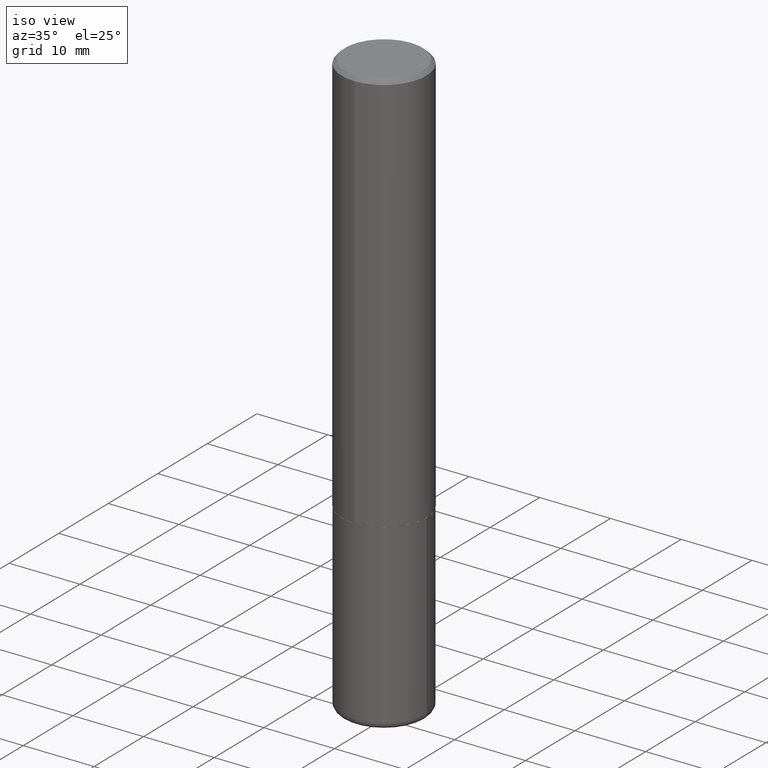
[diagram: clean part render]
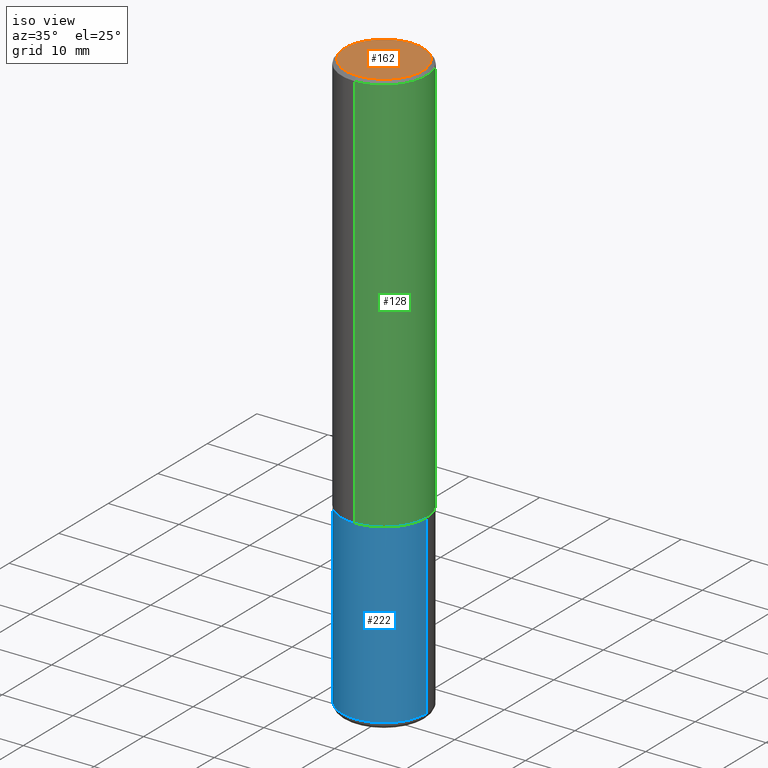
[diagram: same view with three faces highlighted in distinct colors, each labeled with its STEP entity id]
A machine part, iso view with three faces highlighted in distinct colors.
Their STEP definitions:

[orange] entity #162 — the highlighted planar face has unit normal (0, -0, -1).
#8 = AXIS2_PLACEMENT_3D ( 'NONE', #179, #269, #401 ) ;
#37 = ORIENTED_EDGE ( 'NONE', *, *, #180, .T. ) ;
#77 = CARTESIAN_POINT ( 'NONE',  ( 1.579546157692633621E-15, 0.2161999999999999478, -6.694880156558795861E-16 ) ) ;
#118 = VERTEX_POINT ( 'NONE', #77 ) ;
#122 = CARTESIAN_POINT ( 'NONE',  ( -2.089361895350857775E-45, 2.983658608395124733E-31, 8.544672254365514246E-17 ) ) ;
#140 = FACE_OUTER_BOUND ( 'NONE', #323, .T. ) ;
#144 = PLANE ( 'NONE',  #328 ) ;
#162 = ADVANCED_FACE ( 'NONE', ( #140 ), #144, .F. ) ;
#179 = CARTESIAN_POINT ( 'NONE',  ( -2.089361895350857775E-45, 2.983658608395124733E-31, 8.544672254365514246E-17 ) ) ;
#180 = EDGE_CURVE ( 'NONE', #118, #202, #410, .T. ) ;
#202 = VERTEX_POINT ( 'NONE', #303 ) ;
#208 = DIRECTION ( 'NONE',  ( 6.982962677686265922E-15, 1.000000000000000000, -3.491835051801734702E-15 ) ) ;
#250 = DIRECTION ( 'NONE',  ( -2.445221809746292518E-29, 3.491835051801734308E-15, 1.000000000000000000 ) ) ;
#258 = AXIS2_PLACEMENT_3D ( 'NONE', #122, #250, #305 ) ;
#268 = CARTESIAN_POINT ( 'NONE',  ( 1.509716530915770323E-15, 0.2161999999999999478, -7.122113769277070896E-16 ) ) ;
#269 = DIRECTION ( 'NONE',  ( -2.445221809746292518E-29, 3.491835051801734308E-15, 1.000000000000000000 ) ) ;
#303 = CARTESIAN_POINT ( 'NONE',  ( -1.551844647095920142E-15, -0.2161999999999999478, 8.403814607431897971E-16 ) ) ;
#305 = DIRECTION ( 'NONE',  ( -6.982962677686265922E-15, -1.000000000000000000, 3.491835051801733913E-15 ) ) ;
#321 = ORIENTED_EDGE ( 'NONE', *, *, #324, .T. ) ;
#323 = EDGE_LOOP ( 'NONE', ( #37, #321 ) ) ;
#324 = EDGE_CURVE ( 'NONE', #202, #118, #341, .T. ) ;
#328 = AXIS2_PLACEMENT_3D ( 'NONE', #268, #335, #208 ) ;
#335 = DIRECTION ( 'NONE',  ( 2.445221809746291958E-29, -3.491835051801734702E-15, -1.000000000000000000 ) ) ;
#341 = CIRCLE ( 'NONE', #258, 0.2161999999999999478 ) ;
#401 = DIRECTION ( 'NONE',  ( -6.982962677686265922E-15, -1.000000000000000000, 3.491835051801733913E-15 ) ) ;
#410 = CIRCLE ( 'NONE', #8, 0.2161999999999999478 ) ;

[blue] entity #222 — the highlighted cylindrical surface (partial cylindrical patch) has radius 5.9995 mm, axis along (-0, 0, 1).
#6 = CARTESIAN_POINT ( 'NONE',  ( 5.487876547960065873E-29, -7.835233272497903917E-15, -2.244100000000000428 ) ) ;
#14 = AXIS2_PLACEMENT_3D ( 'NONE', #16, #379, #133 ) ;
#16 = CARTESIAN_POINT ( 'NONE',  ( 7.894706947007477118E-29, -1.127154920618732880E-14, -3.228299999999999947 ) ) ;
#20 = DIRECTION ( 'NONE',  ( 1.000000000000000000, -6.982962677686266711E-15, 4.876176775795936353E-29 ) ) ;
#24 = VERTEX_POINT ( 'NONE', #380 ) ;
#32 = ORIENTED_EDGE ( 'NONE', *, *, #123, .F. ) ;
#82 = VERTEX_POINT ( 'NONE', #296 ) ;
#90 = LINE ( 'NONE', #314, #347 ) ;
#96 = VERTEX_POINT ( 'NONE', #299 ) ;
#103 = VERTEX_POINT ( 'NONE', #262 ) ;
#109 = EDGE_CURVE ( 'NONE', #103, #82, #284, .T. ) ;
#123 = EDGE_CURVE ( 'NONE', #96, #103, #396, .T. ) ;
#133 = DIRECTION ( 'NONE',  ( 1.000000000000000000, -6.982962677686265133E-15, 0.000000000000000000 ) ) ;
#135 = VECTOR ( 'NONE', #145, 39.37007874015748143 ) ;
#141 = CIRCLE ( 'NONE', #14, 0.2361999999999999933 ) ;
#145 = DIRECTION ( 'NONE',  ( -2.445468806185136877E-29, 3.491481338843145188E-15, 1.000000000000000000 ) ) ;
#195 = AXIS2_PLACEMENT_3D ( 'NONE', #210, #407, #20 ) ;
#198 = ORIENTED_EDGE ( 'NONE', *, *, #109, .F. ) ;
#210 = CARTESIAN_POINT ( 'NONE',  ( 0.000000000000000000, 0.000000000000000000, 0.000000000000000000 ) ) ;
#222 = ADVANCED_FACE ( 'NONE', ( #273 ), #344, .T. ) ;
#232 = CARTESIAN_POINT ( 'NONE',  ( -0.2361999999999999933, 1.678301941865356591E-15, -1.161852468318208757E-29 ) ) ;
#245 = DIRECTION ( 'NONE',  ( -2.445468806185136877E-29, 3.491481338843145188E-15, 1.000000000000000000 ) ) ;
#262 = CARTESIAN_POINT ( 'NONE',  ( -0.2361999999999999933, -7.875089297477259967E-15, -2.244100000000000428 ) ) ;
#273 = FACE_OUTER_BOUND ( 'NONE', #285, .T. ) ;
#278 = ORIENTED_EDGE ( 'NONE', *, *, #398, .T. ) ;
#284 = CIRCLE ( 'NONE', #400, 0.2361999999999999933 ) ;
#285 = EDGE_LOOP ( 'NONE', ( #32, #278, #353, #198 ) ) ;
#296 = CARTESIAN_POINT ( 'NONE',  ( 0.2361999999999999933, -9.484609056967400443E-15, -2.244100000000000428 ) ) ;
#299 = CARTESIAN_POINT ( 'NONE',  ( -0.2362000000000000210, -9.593247264321970832E-15, -3.228299999999999947 ) ) ;
#302 = DIRECTION ( 'NONE',  ( -2.445468806185136597E-29, 3.491481338843145583E-15, 1.000000000000000000 ) ) ;
#308 = EDGE_CURVE ( 'NONE', #24, #82, #90, .T. ) ;
#314 = CARTESIAN_POINT ( 'NONE',  ( 0.2361999999999999933, -1.649375784469496131E-15, 1.151752954443000088E-29 ) ) ;
#344 = CYLINDRICAL_SURFACE ( 'NONE', #195, 0.2361999999999999933 ) ;
#347 = VECTOR ( 'NONE', #245, 39.37007874015748143 ) ;
#353 = ORIENTED_EDGE ( 'NONE', *, *, #308, .T. ) ;
#362 = DIRECTION ( 'NONE',  ( 1.000000000000000000, -6.982962677686269077E-15, 0.000000000000000000 ) ) ;
#379 = DIRECTION ( 'NONE',  ( -2.445468806185136597E-29, 3.491481338843145583E-15, 1.000000000000000000 ) ) ;
#380 = CARTESIAN_POINT ( 'NONE',  ( 0.2362000000000000210, -1.292092499065682375E-14, -3.228299999999999947 ) ) ;
#396 = LINE ( 'NONE', #232, #135 ) ;
#398 = EDGE_CURVE ( 'NONE', #96, #24, #141, .T. ) ;
#400 = AXIS2_PLACEMENT_3D ( 'NONE', #6, #302, #362 ) ;
#407 = DIRECTION ( 'NONE',  ( -2.445468806185136597E-29, 3.491481338843145583E-15, 1.000000000000000000 ) ) ;

[green] entity #128 — the highlighted cylindrical surface (partial cylindrical patch) has radius 5.9995 mm, axis along (-0, 0, 1).
#10 = EDGE_CURVE ( 'NONE', #187, #349, #339, .T. ) ;
#17 = CARTESIAN_POINT ( 'NONE',  ( 1.678301941865357577E-15, 0.2362000000000001598, -8.247714392355702416E-16 ) ) ;
#23 = DIRECTION ( 'NONE',  ( -6.982962677686265922E-15, -1.000000000000000000, 3.487819265831410167E-15 ) ) ;
#55 = CARTESIAN_POINT ( 'NONE',  ( 4.890443619492597157E-31, -6.983670103603485970E-17, -0.02000000000000005246 ) ) ;
#68 = ORIENTED_EDGE ( 'NONE', *, *, #337, .T. ) ;
#73 = DIRECTION ( 'NONE',  ( -2.445221809746292518E-29, 3.491835051801734702E-15, 1.000000000000000000 ) ) ;
#76 = EDGE_CURVE ( 'NONE', #187, #171, #178, .T. ) ;
#78 = VECTOR ( 'NONE', #277, 39.37007874015748143 ) ;
#89 = EDGE_LOOP ( 'NONE', ( #168, #68, #152, #218 ) ) ;
#112 = CARTESIAN_POINT ( 'NONE',  ( 0.000000000000000000, 0.000000000000000000, 0.000000000000000000 ) ) ;
#113 = CARTESIAN_POINT ( 'NONE',  ( -1.620449627073635473E-15, -0.2362000000000001321, -0.01999999999999922673 ) ) ;
#115 = CARTESIAN_POINT ( 'NONE',  ( -1.649375784469443080E-15, -0.2362000000000080979, -2.243099999999999206 ) ) ;
#117 = CARTESIAN_POINT ( 'NONE',  ( 1.649375784469496920E-15, 0.2361999999999999933, -0.02000000000000087472 ) ) ;
#119 = DIRECTION ( 'NONE',  ( -2.445221809746292518E-29, 3.491835051801734308E-15, 1.000000000000000000 ) ) ;
#128 = ADVANCED_FACE ( 'NONE', ( #204 ), #395, .T. ) ;
#152 = ORIENTED_EDGE ( 'NONE', *, *, #244, .F. ) ;
#168 = ORIENTED_EDGE ( 'NONE', *, *, #10, .T. ) ;
#171 = VERTEX_POINT ( 'NONE', #113 ) ;
#175 = DIRECTION ( 'NONE',  ( -6.982962677686265922E-15, -1.000000000000000000, 3.491835051801734308E-15 ) ) ;
#178 = LINE ( 'NONE', #332, #393 ) ;
#186 = LINE ( 'NONE', #17, #78 ) ;
#187 = VERTEX_POINT ( 'NONE', #115 ) ;
#204 = FACE_OUTER_BOUND ( 'NONE', #89, .T. ) ;
#207 = AXIS2_PLACEMENT_3D ( 'NONE', #55, #119, #23 ) ;
#218 = ORIENTED_EDGE ( 'NONE', *, *, #76, .F. ) ;
#230 = DIRECTION ( 'NONE',  ( -6.982962677686265922E-15, -1.000000000000000000, 3.469747663417773058E-15 ) ) ;
#231 = DIRECTION ( 'NONE',  ( -2.445221809746292518E-29, 3.491835051801734308E-15, 1.000000000000000000 ) ) ;
#233 = AXIS2_PLACEMENT_3D ( 'NONE', #112, #236, #175 ) ;
#236 = DIRECTION ( 'NONE',  ( -2.445221809746292518E-29, 3.491835051801734308E-15, 1.000000000000000000 ) ) ;
#244 = EDGE_CURVE ( 'NONE', #171, #384, #385, .T. ) ;
#247 = CARTESIAN_POINT ( 'NONE',  ( 1.678301941865385779E-15, 0.2361999999999924715, -2.243100000000000982 ) ) ;
#277 = DIRECTION ( 'NONE',  ( -2.445221809746292518E-29, 3.491835051801734702E-15, 1.000000000000000000 ) ) ;
#325 = AXIS2_PLACEMENT_3D ( 'NONE', #358, #231, #230 ) ;
#332 = CARTESIAN_POINT ( 'NONE',  ( -1.649375784469497117E-15, -0.2362000000000001598, 8.247714392355702416E-16 ) ) ;
#337 = EDGE_CURVE ( 'NONE', #349, #384, #186, .T. ) ;
#339 = CIRCLE ( 'NONE', #325, 0.2362000000000002709 ) ;
#349 = VERTEX_POINT ( 'NONE', #247 ) ;
#358 = CARTESIAN_POINT ( 'NONE',  ( 5.484877041441908919E-29, -7.832535204696471708E-15, -2.243100000000000094 ) ) ;
#384 = VERTEX_POINT ( 'NONE', #117 ) ;
#385 = CIRCLE ( 'NONE', #207, 0.2362000000000000766 ) ;
#393 = VECTOR ( 'NONE', #73, 39.37007874015748143 ) ;
#395 = CYLINDRICAL_SURFACE ( 'NONE', #233, 0.2362000000000001598 ) ;